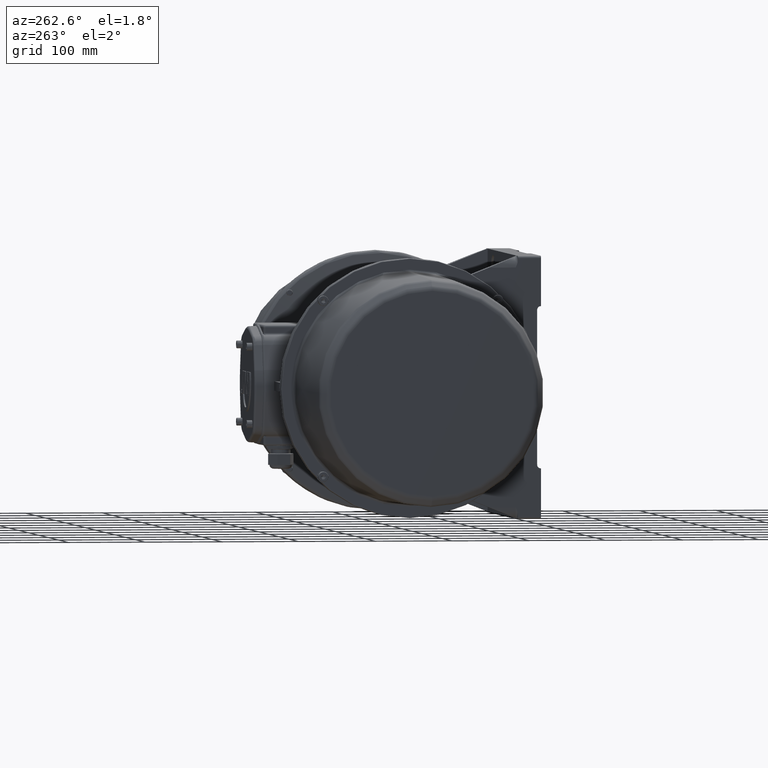
[diagram: clean part render]
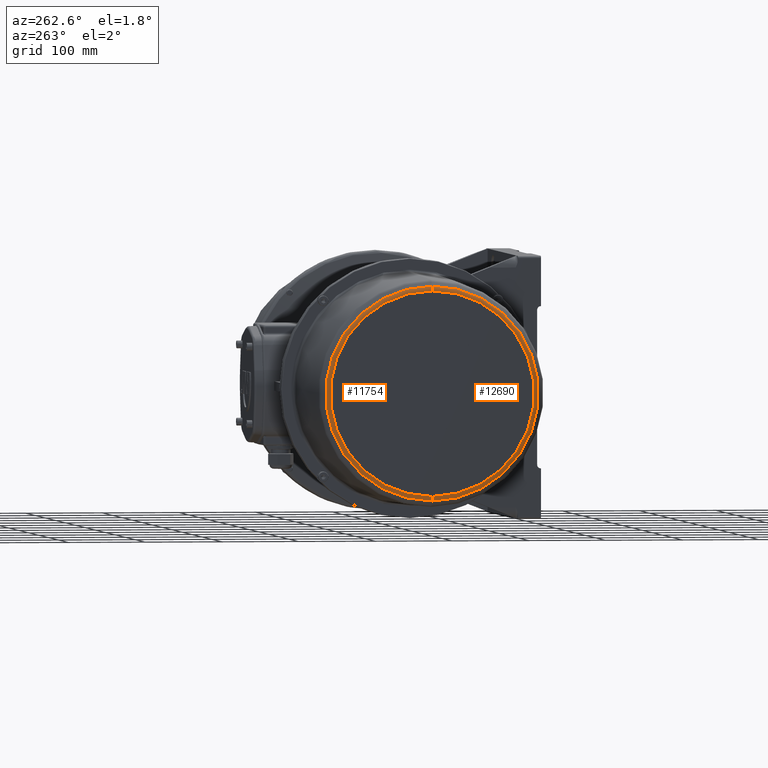
[diagram: same view with one multi-face feature highlighted, each face labeled with its STEP entity id]
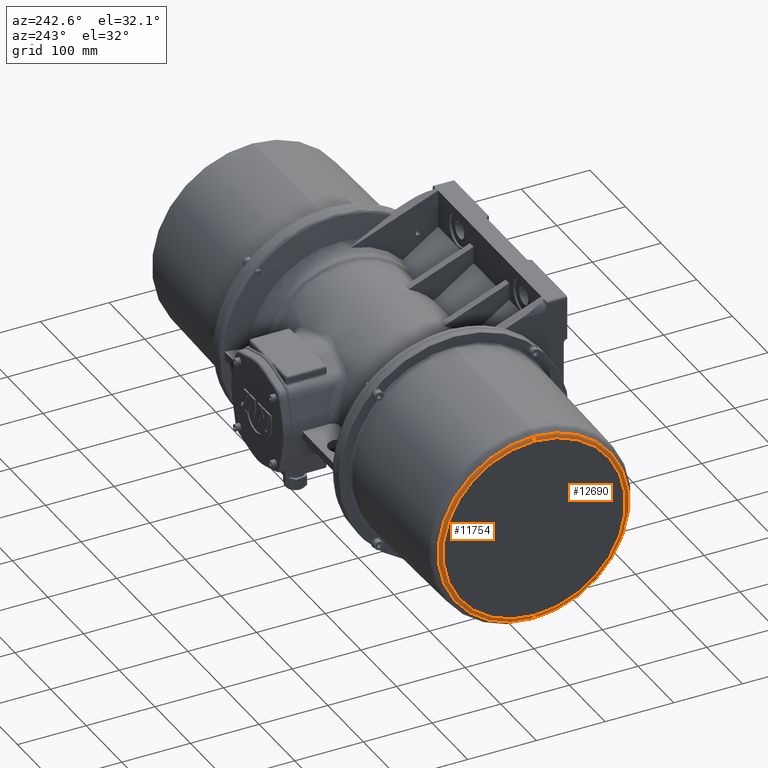
[diagram: same view with one multi-face feature highlighted, each face labeled with its STEP entity id]
A machine part, auxiliary view. The highlighted faces form ONE feature: a constant-radius fillet chain: 2 tangent blend faces with common blend radius 8.5 mm. The faces share edges in the B-rep.
A second angle (auxiliary view) of the same feature is appended — it is thin or edge-on in the first view.
Their STEP definitions:
[1] entity #12690 (Torus):
#717 = CARTESIAN_POINT ( 'NONE',  ( -392.4996765234520200, -4.294840484568368500E-014, 132.9750900478577800 ) ) ;
#724 = DIRECTION ( 'NONE',  ( -1.375271541924813600E-016, 1.000000000000000000, -1.224646799147353500E-016 ) ) ;
#725 = DIRECTION ( 'NONE',  ( -1.000000000000000000, -1.375271541924813800E-016, 0.0000000000000000000 ) ) ;
#1768 = CIRCLE ( 'NONE', #4582, 8.500000000000007100 ) ;
#4155 = AXIS2_PLACEMENT_3D ( 'NONE', #71790, #71860, #71861 ) ;
#4582 = AXIS2_PLACEMENT_3D ( 'NONE', #717, #724, #725 ) ;
#7342 = CARTESIAN_POINT ( 'NONE',  ( -398.6140648263304900, -6.007405110795037600E-014, -138.8796861967593100 ) ) ;
#9186 = CARTESIAN_POINT ( 'NONE',  ( -398.6140648263304900, -4.306619479120535900E-014, 138.8796861967592500 ) ) ;
#9433 = CARTESIAN_POINT ( 'NONE',  ( -400.9996765234520200, -4.359179022376257300E-014, 132.9750900478577800 ) ) ;
#9819 = CARTESIAN_POINT ( 'NONE',  ( -400.9996765234520200, -6.040213749566381200E-014, -132.9750900478578300 ) ) ;
#12690 = ADVANCED_FACE ( 'NONE', ( #72964 ), #76094, .T. ) ;
#15485 = AXIS2_PLACEMENT_3D ( 'NONE', #27630, #27644, #27645 ) ;
#15558 = AXIS2_PLACEMENT_3D ( 'NONE', #29335, #29341, #29342 ) ;
#18959 = VERTEX_POINT ( 'NONE', #7342 ) ;
#25847 = CIRCLE ( 'NONE', #15485, 138.8796861967592200 ) ;
#26236 = CIRCLE ( 'NONE', #15558, 132.9750900478578000 ) ;
#27630 = CARTESIAN_POINT ( 'NONE',  ( -398.6140648263304900, -6.007405110795038900E-014, -3.210192973510524400E-014 ) ) ;
#27644 = DIRECTION ( 'NONE',  ( 1.000000000000000000, 1.375271541924813800E-016, 1.374141805576009900E-016 ) ) ;
#27645 = DIRECTION ( 'NONE',  ( 0.0000000000000000000, 0.0000000000000000000, 1.000000000000000000 ) ) ;
#28280 = VERTEX_POINT ( 'NONE', #9186 ) ;
#28522 = VERTEX_POINT ( 'NONE', #9433 ) ;
#29126 = VERTEX_POINT ( 'NONE', #9819 ) ;
#29335 = CARTESIAN_POINT ( 'NONE',  ( -400.9996765234520200, -6.040213749566381200E-014, -3.242974661159379600E-014 ) ) ;
#29341 = DIRECTION ( 'NONE',  ( -1.000000000000000000, -1.375271541924813800E-016, -1.374141805576009900E-016 ) ) ;
#29342 = DIRECTION ( 'NONE',  ( 0.0000000000000000000, 0.0000000000000000000, -1.000000000000000000 ) ) ;
#35655 = EDGE_CURVE ( 'NONE', #29126, #18959, #67869, .T. ) ;
#40637 = EDGE_CURVE ( 'NONE', #28522, #28280, #1768, .T. ) ;
#43435 = EDGE_LOOP ( 'NONE', ( #45467, #45468, #45469, #45470 ) ) ;
#45467 = ORIENTED_EDGE ( 'NONE', *, *, #40637, .F. ) ;
#45468 = ORIENTED_EDGE ( 'NONE', *, *, #53934, .F. ) ;
#45469 = ORIENTED_EDGE ( 'NONE', *, *, #35655, .T. ) ;
#45470 = ORIENTED_EDGE ( 'NONE', *, *, #53631, .F. ) ;
#53631 = EDGE_CURVE ( 'NONE', #28280, #18959, #25847, .T. ) ;
#53934 = EDGE_CURVE ( 'NONE', #29126, #28522, #26236, .T. ) ;
#59313 = AXIS2_PLACEMENT_3D ( 'NONE', #73477, #73458, #73491 ) ;
#67869 = CIRCLE ( 'NONE', #4155, 8.500000000000007100 ) ;
#71790 = CARTESIAN_POINT ( 'NONE',  ( -392.4996765234520200, -5.923315668502770400E-014, -132.9750900478578300 ) ) ;
#71860 = DIRECTION ( 'NONE',  ( 1.375271541924813800E-016, -1.000000000000000000, 1.837001188807243800E-032 ) ) ;
#71861 = DIRECTION ( 'NONE',  ( 1.000000000000000000, 1.375271541924813800E-016, 0.0000000000000000000 ) ) ;
#72964 = FACE_OUTER_BOUND ( 'NONE', #43435, .T. ) ;
#73458 = DIRECTION ( 'NONE',  ( 1.000000000000000000, 1.375271541924813800E-016, 1.374141805576009900E-016 ) ) ;
#73477 = CARTESIAN_POINT ( 'NONE',  ( -392.4996765234520200, -5.923315668502770400E-014, -3.126172607685420200E-014 ) ) ;
#73491 = DIRECTION ( 'NONE',  ( 1.374141805576009900E-016, 1.889818119777867100E-032, -1.000000000000000000 ) ) ;
#76094 = TOROIDAL_SURFACE ( 'NONE', #59313, 132.9750900478578000, 8.500000000000000000 ) ;
[2] entity #11754 (Torus):
#717 = CARTESIAN_POINT ( 'NONE',  ( -392.4996765234520200, -4.294840484568368500E-014, 132.9750900478577800 ) ) ;
#724 = DIRECTION ( 'NONE',  ( -1.375271541924813600E-016, 1.000000000000000000, -1.224646799147353500E-016 ) ) ;
#725 = DIRECTION ( 'NONE',  ( -1.000000000000000000, -1.375271541924813800E-016, 0.0000000000000000000 ) ) ;
#1768 = CIRCLE ( 'NONE', #4582, 8.500000000000007100 ) ;
#4155 = AXIS2_PLACEMENT_3D ( 'NONE', #71790, #71860, #71861 ) ;
#4157 = AXIS2_PLACEMENT_3D ( 'NONE', #71880, #71885, #71887 ) ;
#4313 = AXIS2_PLACEMENT_3D ( 'NONE', #74690, #74699, #74702 ) ;
#4582 = AXIS2_PLACEMENT_3D ( 'NONE', #717, #724, #725 ) ;
#5844 = ORIENTED_EDGE ( 'NONE', *, *, #40157, .F. ) ;
#5847 = ORIENTED_EDGE ( 'NONE', *, *, #40637, .T. ) ;
#5850 = ORIENTED_EDGE ( 'NONE', *, *, #35662, .F. ) ;
#5852 = ORIENTED_EDGE ( 'NONE', *, *, #35655, .F. ) ;
#7342 = CARTESIAN_POINT ( 'NONE',  ( -398.6140648263304900, -6.007405110795037600E-014, -138.8796861967593100 ) ) ;
#9186 = CARTESIAN_POINT ( 'NONE',  ( -398.6140648263304900, -4.306619479120535900E-014, 138.8796861967592500 ) ) ;
#9433 = CARTESIAN_POINT ( 'NONE',  ( -400.9996765234520200, -4.359179022376257300E-014, 132.9750900478577800 ) ) ;
#9819 = CARTESIAN_POINT ( 'NONE',  ( -400.9996765234520200, -6.040213749566381200E-014, -132.9750900478578300 ) ) ;
#11754 = ADVANCED_FACE ( 'NONE', ( #65402 ), #65424, .T. ) ;
#18959 = VERTEX_POINT ( 'NONE', #7342 ) ;
#28280 = VERTEX_POINT ( 'NONE', #9186 ) ;
#28522 = VERTEX_POINT ( 'NONE', #9433 ) ;
#29126 = VERTEX_POINT ( 'NONE', #9819 ) ;
#35655 = EDGE_CURVE ( 'NONE', #29126, #18959, #67869, .T. ) ;
#35662 = EDGE_CURVE ( 'NONE', #18959, #28280, #67891, .T. ) ;
#38193 = EDGE_LOOP ( 'NONE', ( #5844, #5847, #5850, #5852 ) ) ;
#40157 = EDGE_CURVE ( 'NONE', #28522, #29126, #68596, .T. ) ;
#40637 = EDGE_CURVE ( 'NONE', #28522, #28280, #1768, .T. ) ;
#58960 = AXIS2_PLACEMENT_3D ( 'NONE', #64295, #64294, #64304 ) ;
#64294 = DIRECTION ( 'NONE',  ( 1.000000000000000000, 1.375271541924813800E-016, 1.374141805576009900E-016 ) ) ;
#64295 = CARTESIAN_POINT ( 'NONE',  ( -392.4996765234520200, -5.923315668502770400E-014, -3.126172607685420200E-014 ) ) ;
#64304 = DIRECTION ( 'NONE',  ( 1.374141805576009900E-016, 1.889818119777867100E-032, -1.000000000000000000 ) ) ;
#65402 = FACE_OUTER_BOUND ( 'NONE', #38193, .T. ) ;
#65424 = TOROIDAL_SURFACE ( 'NONE', #58960, 132.9750900478578000, 8.500000000000000000 ) ;
#67869 = CIRCLE ( 'NONE', #4155, 8.500000000000007100 ) ;
#67891 = CIRCLE ( 'NONE', #4157, 138.8796861967592200 ) ;
#68596 = CIRCLE ( 'NONE', #4313, 132.9750900478578000 ) ;
#71790 = CARTESIAN_POINT ( 'NONE',  ( -392.4996765234520200, -5.923315668502770400E-014, -132.9750900478578300 ) ) ;
#71860 = DIRECTION ( 'NONE',  ( 1.375271541924813800E-016, -1.000000000000000000, 1.837001188807243800E-032 ) ) ;
#71861 = DIRECTION ( 'NONE',  ( 1.000000000000000000, 1.375271541924813800E-016, 0.0000000000000000000 ) ) ;
#71880 = CARTESIAN_POINT ( 'NONE',  ( -398.6140648263304900, -6.007405110795038900E-014, -3.210192973510524400E-014 ) ) ;
#71885 = DIRECTION ( 'NONE',  ( 1.000000000000000000, 1.375271541924813800E-016, 1.374141805576009900E-016 ) ) ;
#71887 = DIRECTION ( 'NONE',  ( 0.0000000000000000000, 0.0000000000000000000, 1.000000000000000000 ) ) ;
#74690 = CARTESIAN_POINT ( 'NONE',  ( -400.9996765234520200, -6.040213749566381200E-014, -3.242974661159379600E-014 ) ) ;
#74699 = DIRECTION ( 'NONE',  ( -1.000000000000000000, -1.375271541924813800E-016, -1.374141805576009900E-016 ) ) ;
#74702 = DIRECTION ( 'NONE',  ( 0.0000000000000000000, 0.0000000000000000000, -1.000000000000000000 ) ) ;